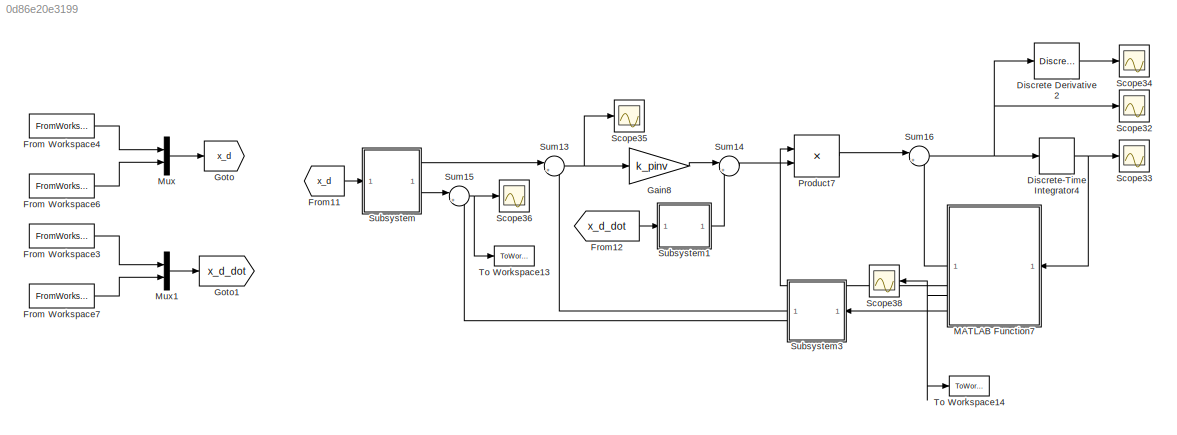
MODEL slx_0d86e20e3199
KIND model
CONFIG AbsTol = auto
CONFIG EnableMultiTasking = off
CONFIG FixedStep = auto
CONFIG MaxStep = auto
CONFIG MinStep = auto
CONFIG RelTol = 1e-3
CONFIG SampleTimeConstraint = Unconstrained
CONFIG SolverName = VariableStepAuto
CONFIG StartTime = 0.0
CONFIG StopTime = 40
BLOCK [Reference] Discrete Derivative2  REF=simulink/Discrete/Discrete Derivative
  SourceBlock = simulink/Discrete/Discrete Derivative
  SourceType = Discrete Derivative
BLOCK [DiscreteIntegrator] Discrete-Time Integrator4
  ICPrevOutput = DiscIntNeverNeededParam
  ICPrevScaledInput = DiscIntNeverNeededParam
  InitialCondition = [theta1_0 theta2_0 -0.25 0]'
  InitialConditionSetting = Auto
  SampleTime = -1
BLOCK [FromWorkspace] From Workspace3
  SampleTime = T
  VariableName = p_d_dot
BLOCK [FromWorkspace] From Workspace4
  SampleTime = T
  VariableName = p_d
BLOCK [FromWorkspace] From Workspace6
  SampleTime = T
  VariableName = phi_d
BLOCK [FromWorkspace] From Workspace7
  SampleTime = T
  VariableName = phi_d_dot
BLOCK [From] From11
  GotoTag = x_d
BLOCK [From] From12
  GotoTag = x_d_dot
BLOCK [Gain] Gain8
  Gain = k_pinv
BLOCK [Goto] Goto
  GotoTag = x_d
BLOCK [Goto] Goto1
  GotoTag = x_d_dot
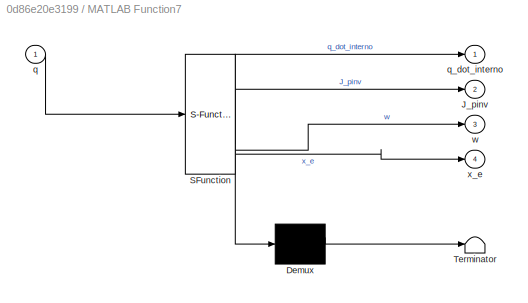
BLOCK [SubSystem] MATLAB Function7
  ErrorFcn = Stateflow.Translate.translate
  LibrarySourceBlock = simulink/User-Defined\nFunctions/MATLAB Function
  NameLocation = top
  PermitHierarchicalResolution = ExplicitOnly
  SFBlockType = MATLAB Function
  TreatAsAtomicUnit = on
BLOCK [Demux] MATLAB Function7/ Demux 
  Outputs = 1
BLOCK [S-Function] MATLAB Function7/ SFunction 
  EnableBusSupport = on
  FunctionName = sf_sfun
  PortCounts = [1 5]
  SFcnIsStateOwnerBlock = off
  SFunctionDeploymentMode = off
  Tag = Stateflow S-Function 8
BLOCK [Terminator] MATLAB Function7/ Terminator 
BLOCK [Outport] MATLAB Function7/J_pinv
  Port = 2
BLOCK [Inport] MATLAB Function7/q
BLOCK [Outport] MATLAB Function7/q_dot_interno
BLOCK [Outport] MATLAB Function7/w
  Port = 3
BLOCK [Outport] MATLAB Function7/x_e
  Port = 4
BLOCK [Mux] Mux
  DisplayOption = bar
  Inputs = 2
BLOCK [Mux] Mux1
  DisplayOption = bar
  Inputs = 2
BLOCK [Product] Product7
  Multiplication = Matrix(*)
BLOCK [Scope] Scope32
  Floating = off
  NumInputPorts = 1
  ScopeSpecificationString = Simulink.scopes.TimeScopeBlockCfg('CurrentConfiguration', extmgr.ConfigurationSet(extmgr.Configuration('Core','General UI',true),extmgr.Configuration('Core','Source UI',true),extmgr.Configuration('Sources','WiredSimulink',true,'DataLoggingVariableName','ScopeData1'),extmgr.Configuration('Visuals','Time Domain',true,'SerializedDisplays',{struct('MinYLimReal','-0.76314','MaxYLimReal','0.97762','YLab...<+1438ch>
BLOCK [Scope] Scope33
  Floating = off
  NumInputPorts = 1
  ScopeSpecificationString = Simulink.scopes.TimeScopeBlockCfg('CurrentConfiguration', extmgr.ConfigurationSet(extmgr.Configuration('Core','General UI',true),extmgr.Configuration('Core','Source UI',true),extmgr.Configuration('Sources','WiredSimulink',true,'DataLoggingVariableName','ScopeData2'),extmgr.Configuration('Visuals','Time Domain',true,'SerializedDisplays',{struct('MinYLimReal','-0.90053','MaxYLimReal','3.10473','YLab...<+1501ch>
BLOCK [Scope] Scope34
  Floating = off
  NumInputPorts = 1
  ScopeSpecificationString = Simulink.scopes.TimeScopeBlockCfg('CurrentConfiguration', extmgr.ConfigurationSet(extmgr.Configuration('Core','General UI',true),extmgr.Configuration('Core','Source UI',true),extmgr.Configuration('Sources','WiredSimulink',true,'DataLoggingVariableName','ScopeData3'),extmgr.Configuration('Visuals','Time Domain',true,'SerializedDisplays',{struct('MinYLimReal','-1.03452','MaxYLimReal','1.27089','YLab...<+1500ch>
BLOCK [Scope] Scope35
  Floating = off
  NumInputPorts = 1
  ScopeSpecificationString = Simulink.scopes.TimeScopeBlockCfg('CurrentConfiguration', extmgr.ConfigurationSet(extmgr.Configuration('Core','General UI',true),extmgr.Configuration('Core','Source UI',true),extmgr.Configuration('Sources','WiredSimulink',true,'DataLoggingVariableName','ScopeData4'),extmgr.Configuration('Visuals','Time Domain',true,'SerializedDisplays',{struct('MinYLimReal','-0.000003','MaxYLimReal','0.000017','YL...<+1419ch>
BLOCK [Scope] Scope36
  Floating = off
  NumInputPorts = 1
  ScopeSpecificationString = Simulink.scopes.TimeScopeBlockCfg('CurrentConfiguration', extmgr.ConfigurationSet(extmgr.Configuration('Core','General UI',true),extmgr.Configuration('Core','Source UI',true),extmgr.Configuration('Sources','WiredSimulink',true,'DataLoggingVariableName','ScopeData5'),extmgr.Configuration('Visuals','Time Domain',true,'SerializedDisplays',{struct('MinYLimReal','-0.35969','MaxYLimReal','1.37789','YLab...<+1389ch>
BLOCK [Scope] Scope38
  Floating = off
  NameLocation = top
  NumInputPorts = 1
  ScopeSpecificationString = Simulink.scopes.TimeScopeBlockCfg('CurrentConfiguration', extmgr.ConfigurationSet(extmgr.Configuration('Core','General UI',true),extmgr.Configuration('Core','Source UI',true),extmgr.Configuration('Sources','WiredSimulink',true,'DataLoggingVariableName','ScopeData7'),extmgr.Configuration('Visuals','Time Domain',true,'SerializedDisplays',{struct('MinYLimReal','0.2689','MaxYLimReal','0.88707','YLabel...<+1396ch>
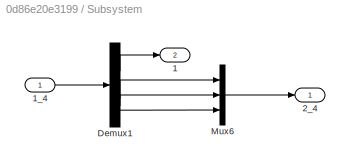
BLOCK [SubSystem] Subsystem
BLOCK [Outport] Subsystem/1
  Port = 2
BLOCK [Inport] Subsystem/1_4
BLOCK [Outport] Subsystem/2_4
BLOCK [Demux] Subsystem/Demux1
BLOCK [Mux] Subsystem/Mux6
  DisplayOption = bar
  Inputs = 3
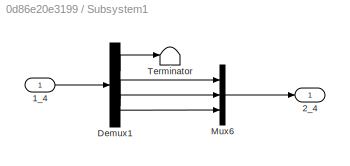
BLOCK [SubSystem] Subsystem1
BLOCK [Inport] Subsystem1/1_4
BLOCK [Outport] Subsystem1/2_4
BLOCK [Demux] Subsystem1/Demux1
BLOCK [Mux] Subsystem1/Mux6
  DisplayOption = bar
  Inputs = 3
BLOCK [Terminator] Subsystem1/Terminator
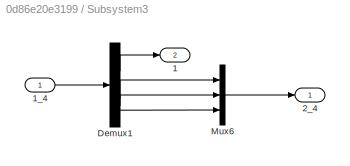
BLOCK [SubSystem] Subsystem3
  NameLocation = top
BLOCK [Outport] Subsystem3/1
  Port = 2
BLOCK [Inport] Subsystem3/1_4
BLOCK [Outport] Subsystem3/2_4
BLOCK [Demux] Subsystem3/Demux1
BLOCK [Mux] Subsystem3/Mux6
  DisplayOption = bar
  Inputs = 3
BLOCK [Sum] Sum13
  Inputs = |+-
BLOCK [Sum] Sum14
  Inputs = |++
BLOCK [Sum] Sum15
  Inputs = |+-
BLOCK [Sum] Sum16
  Inputs = |++
BLOCK [ToWorkspace] To Workspace13
  FixptAsFi = on
  MaxDataPoints = inf
  SampleTime = -1
  SaveFormat = Structure With Time
  VariableName = e_x
BLOCK [ToWorkspace] To Workspace14
  FixptAsFi = on
  MaxDataPoints = inf
  SampleTime = -1
  SaveFormat = Structure With Time
  VariableName = w
LINE Discrete Derivative2:1 -> Scope34:1
NET Discrete-Time Integrator4:1 -> MATLAB Function7:1, Scope33:1
LINE From Workspace3:1 -> Mux1:1
LINE From Workspace4:1 -> Mux:1
LINE From Workspace6:1 -> Mux:2
LINE From Workspace7:1 -> Mux1:2
LINE From11:1 -> Subsystem:1
LINE From12:1 -> Subsystem1:1
LINE Gain8:1 -> Sum14:1
LINE MATLAB Function7:1 -> Sum16:2
LINE MATLAB Function7:2 -> Product7:1
NET MATLAB Function7:3 -> Scope38:1, To Workspace14:1
LINE MATLAB Function7:4 -> Subsystem3:1
LINE Mux1:1 -> Goto1:1
LINE Mux:1 -> Goto:1
LINE Product7:1 -> Sum16:1
LINE Subsystem/1_4:1 -> Subsystem/Demux1:1
LINE Subsystem/Demux1:1 -> Subsystem/1:1
LINE Subsystem/Demux1:2 -> Subsystem/Mux6:1
LINE Subsystem/Demux1:3 -> Subsystem/Mux6:2
LINE Subsystem/Demux1:4 -> Subsystem/Mux6:3
LINE Subsystem/Mux6:1 -> Subsystem/2_4:1
LINE Subsystem1/1_4:1 -> Subsystem1/Demux1:1
LINE Subsystem1/Demux1:1 -> Subsystem1/Terminator:1
LINE Subsystem1/Demux1:2 -> Subsystem1/Mux6:1
LINE Subsystem1/Demux1:3 -> Subsystem1/Mux6:2
LINE Subsystem1/Demux1:4 -> Subsystem1/Mux6:3
LINE Subsystem1/Mux6:1 -> Subsystem1/2_4:1
LINE Subsystem1:1 -> Sum14:2
LINE Subsystem3/1_4:1 -> Subsystem3/Demux1:1
LINE Subsystem3/Demux1:1 -> Subsystem3/1:1
LINE Subsystem3/Demux1:2 -> Subsystem3/Mux6:1
LINE Subsystem3/Demux1:3 -> Subsystem3/Mux6:2
LINE Subsystem3/Demux1:4 -> Subsystem3/Mux6:3
LINE Subsystem3/Mux6:1 -> Subsystem3/2_4:1
LINE Subsystem3:1 -> Sum13:2
LINE Subsystem3:2 -> Sum15:2
LINE Subsystem:1 -> Sum13:1
LINE Subsystem:2 -> Sum15:1
NET Sum13:1 -> Gain8:1, Scope35:1
LINE Sum14:1 -> Product7:2
NET Sum15:1 -> Scope36:1, To Workspace13:1
NET Sum16:1 -> Discrete Derivative2:1, Discrete-Time Integrator4:1, Scope32:1
note: NET lines group one-source signal fan-out (src -> all destinations, sorted); 1:1 wires keep LINE
CHART MATLAB Function7 states=1 transitions=1
  STATE_LABEL 'eML_blk_kernel()'
  STATE_LABEL 'SCRIPT:\nfunction [q_dot_interno,J_pinv,w,x_e] = kin(q)\n\n    q1 = q(1); q2 = q(2); q3 = q(3); q4 = q(4);\n\n    J = [- sin(q1)/2 - (cos(q1)*sin(q2))/2 - (cos(q2)*sin(q1))/2, - (cos(q1)*sin(q2))/2 - (cos(q2)*sin(q1))/2, 0, 0;\n           cos(q1)/2 + (cos(q1)*cos(q2))/2 - (sin(q1)*sin(q2))/2,   (cos(q1)*cos(q2))/2 - (sin(q1)*sin(q2))/2, 0, 0;\n                                                             ...<+566ch>'
CHART  states=0 transitions=0
